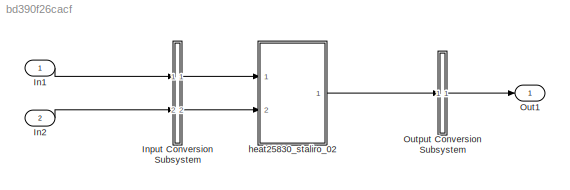
MODEL slx_bd390f26cacf
KIND model
CONFIG AbsTol = 1e-5
CONFIG EnableMultiTasking = on
CONFIG FixedStep = 0.05
CONFIG MaxStep = auto
CONFIG MinStep = auto
CONFIG RelTol = 1e-5
CONFIG SampleTimeConstraint = Unconstrained
CONFIG Solver = FixedStepAuto
CONFIG SolverName = FixedStepAuto
CONFIG StartTime = 0.0
CONFIG StopTime = 50
BLOCK [Inport] In1
  IconDisplay = Port number
BLOCK [Inport] In2
  IconDisplay = Port number
  Port = 2
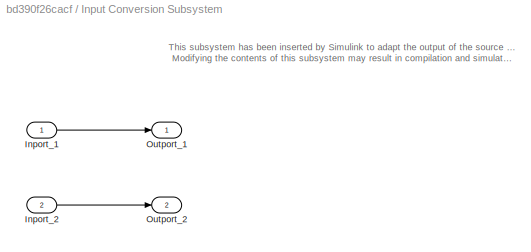
BLOCK [SubSystem] Input Conversion Subsystem
  AttributesFormatString = %<Description>
  Description = Signal spec.\nand routing
  Permissions = ReadOnly
  PermitHierarchicalResolution = ExplicitOnly
  Ports = [2, 2]
  RequestExecContextInheritance = off
  Tag = __SLT_ICS__
  UserDataPersistent = on
BLOCK [Inport] Input Conversion Subsystem/Inport_1
  IconDisplay = Port number
BLOCK [Inport] Input Conversion Subsystem/Inport_2
  IconDisplay = Port number
  Port = 2
BLOCK [Outport] Input Conversion Subsystem/Outport_1
  IconDisplay = Port number
BLOCK [Outport] Input Conversion Subsystem/Outport_2
  IconDisplay = Port number
  Port = 2
BLOCK [Outport] Out1
  IconDisplay = Port number
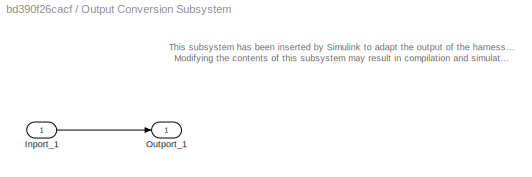
BLOCK [SubSystem] Output Conversion Subsystem
  AttributesFormatString = %<Description>
  Description = Signal spec.\nand routing
  Permissions = ReadOnly
  PermitHierarchicalResolution = ExplicitOnly
  Ports = [1, 1]
  RequestExecContextInheritance = off
  Tag = __SLT_OCS__
  UserDataPersistent = on
BLOCK [Inport] Output Conversion Subsystem/Inport_1
  IconDisplay = Port number
BLOCK [Outport] Output Conversion Subsystem/Outport_1
  IconDisplay = Port number
BLOCK [ModelReference] heat25830_staliro_02
  ModelNameDialog = heat25830_staliro_02
  ModelReferenceVersion = 1.198
  Ports = [2, 1]
ANNOTATION Input Conversion Subsystem: This subsystem has been inserted by Simulink to adapt the output of the source blocks to the interface required by the harnessed component. Modifying the contents of this subsystem may result in compilation and simulation failure.
ANNOTATION Output Conversion Subsystem: This subsystem has been inserted by Simulink to adapt the output of the harnessed component to the interface required by the sink blocks. Modifying the contents of this subsystem may result in compilation and simulation failure.
LINE In1:1 -> Input Conversion Subsystem:1
LINE In2:1 -> Input Conversion Subsystem:2
LINE Input Conversion Subsystem/Inport_1:1 -> Input Conversion Subsystem/Outport_1:1
LINE Input Conversion Subsystem/Inport_2:1 -> Input Conversion Subsystem/Outport_2:1
LINE Input Conversion Subsystem:1 -> heat25830_staliro_02:1
LINE Input Conversion Subsystem:2 -> heat25830_staliro_02:2
LINE Output Conversion Subsystem/Inport_1:1 -> Output Conversion Subsystem/Outport_1:1
LINE Output Conversion Subsystem:1 -> Out1:1
LINE heat25830_staliro_02:1 -> Output Conversion Subsystem:1
